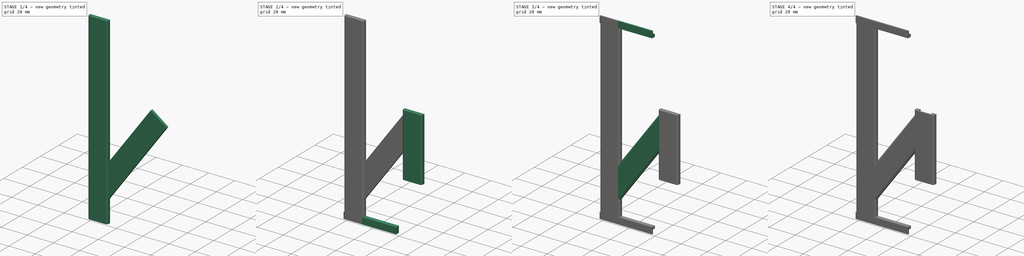
[diagram: build sequence overview — one tinted view per stage of 4, left to right]
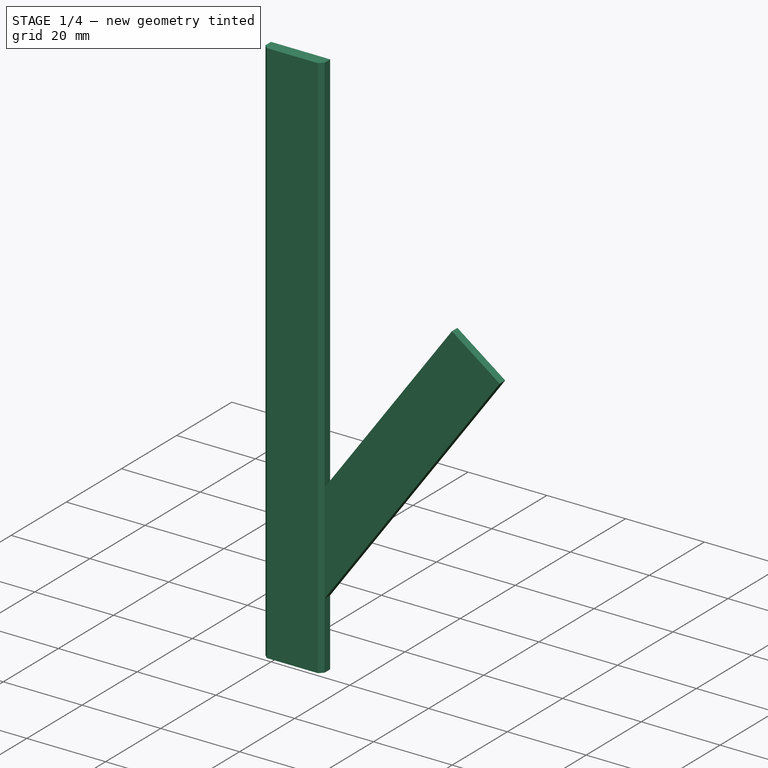
[diagram: stage 1 of 4 — iso view after this stage's code; geometry added in this stage tinted green]
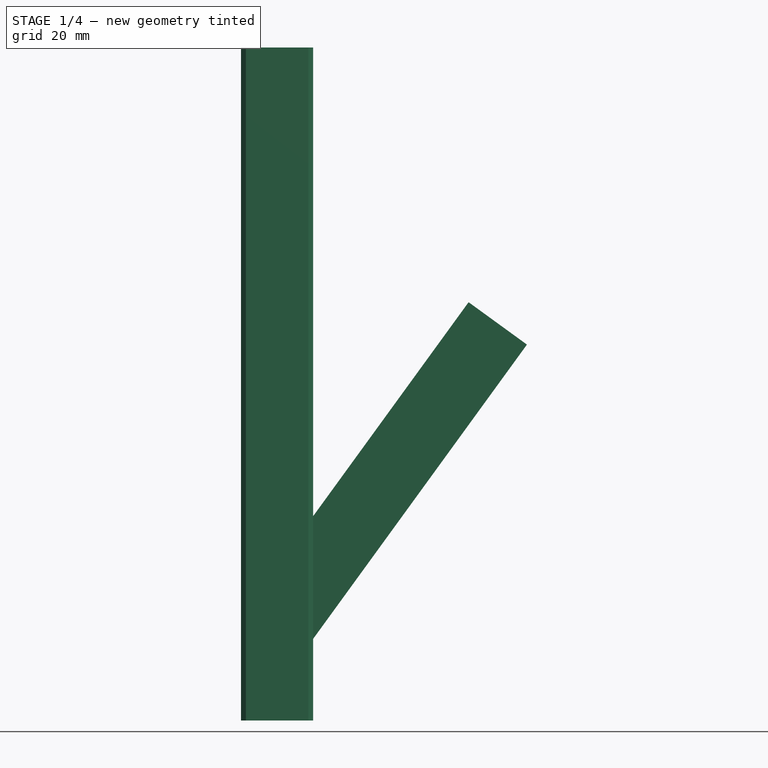
[diagram: stage 1 of 4 — front view after this stage's code; geometry added in this stage tinted green]
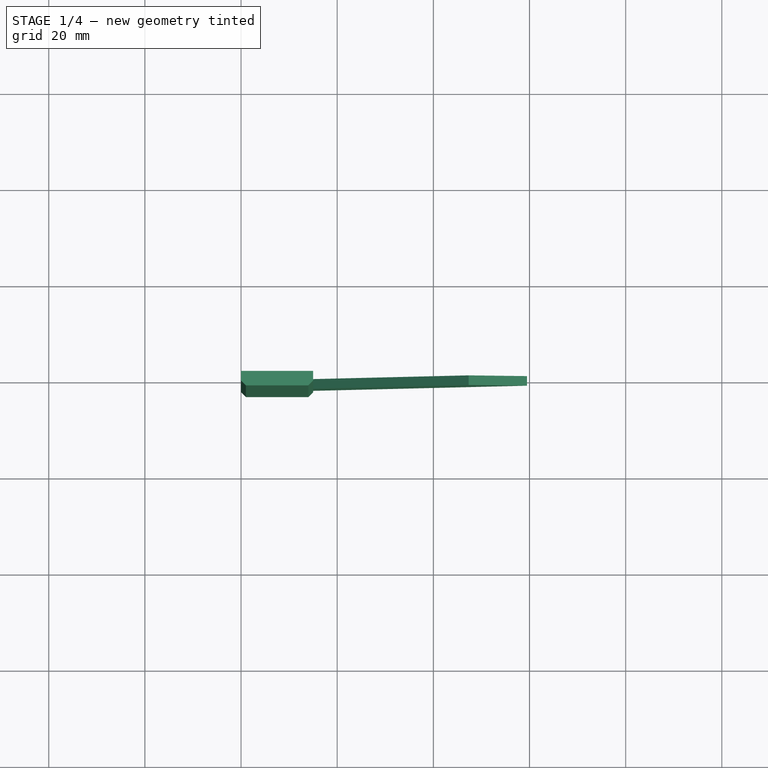
[diagram: stage 1 of 4 — top view after this stage's code; geometry added in this stage tinted green]
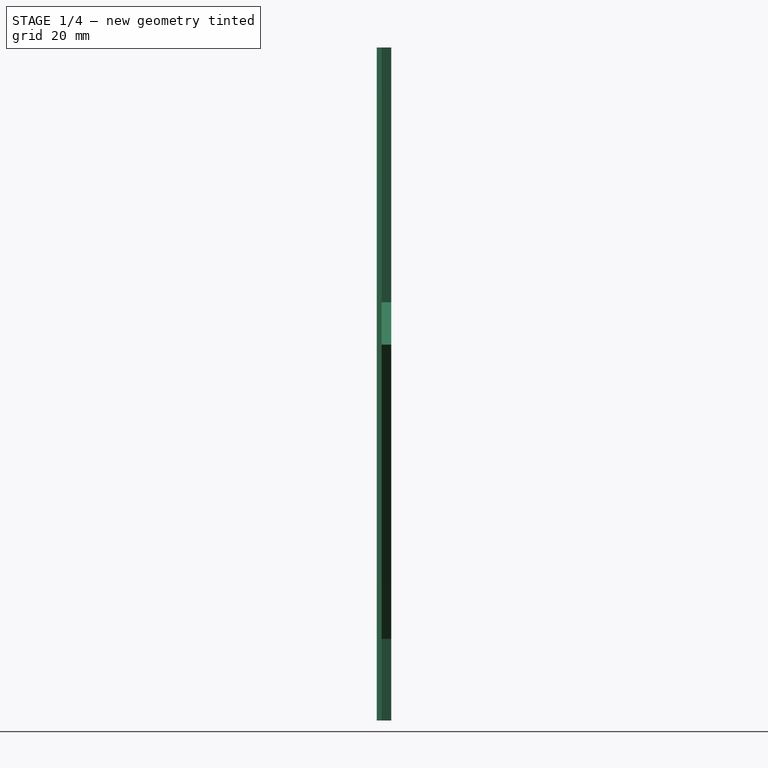
[diagram: stage 1 of 4 — right view after this stage's code; geometry added in this stage tinted green]
FCSTD DOCUMENT  (FreeCAD 0.20R29603 (Git))
Label: neopixelbracket_N
License: All rights reserved
LicenseURL: http://en.wikipedia.org/wiki/All_rights_reserved
objects: Sketcher::SketchObject×13, PartDesign::Pad×8, PartDesign::Pocket×5, PartDesign::Plane×1, PartDesign::Body×1
note: 41 computed .brp shape members not serialized (recipe doc carries the construction recipe); baked Part::Feature solids carry a one-line shape summary decoded from their .brp

FEATURE [Sketcher::SketchObject] Sketch001
  FullyConstrained = true
  MapMode = 5
  Support = -> [XY_Plane]
  sketch-geometry (6):
    g0: LineSegment StartX=1 StartY=-3 StartZ=0 EndX=0 EndY=-2 EndZ=0
    g1: LineSegment StartX=0 StartY=-2 StartZ=0 EndX=0 EndY=0 EndZ=0
    g2: LineSegment StartX=0 StartY=0 StartZ=0 EndX=15 EndY=0 EndZ=0
    g3: LineSegment StartX=15 StartY=0 StartZ=0 EndX=15 EndY=-2 EndZ=0
    g4: LineSegment StartX=15 StartY=-2 StartZ=0 EndX=14 EndY=-3 EndZ=0
    g5: LineSegment StartX=14 StartY=-3 StartZ=0 EndX=1 EndY=-3 EndZ=0
  constraints (17):
    c: Coincident(g0,g1)
    c: Vertical(g1)
    c: Coincident(g1,g2)
    c: Horizontal(g2)
    c: Coincident(g2,g3)
    c: Vertical(g3)
    c: Coincident(g3,g4)
    c: Coincident(g4,g5)
    c: Coincident(g5,g0)
    c: Horizontal(g5)
    c: DistanceY(g0,g1) = 2
    c: DistanceY(g3,g3) = 2
    c: DistanceY(g4,g3) = 1
    c: DistanceX(g4,g3) = 1
    c: DistanceX(g0,g0) = 1
    c: DistanceX(g1,g2) = 15
    c: Coincident(g1,g-1)
FEATURE [PartDesign::Pad] Pad
  Direction = (0,0,1)
  Length = 140
  Length2 = 10
  Profile = -> Sketch001
  ReferenceAxis = -> Sketch001 [N_Axis]
  Type = 0
FEATURE [Sketcher::SketchObject] Sketch
  AttachmentOffset = pos=(0,0,-2) rot=(0,0,1;0rad)
  ExternalGeometry = -> [Pad]
  FullyConstrained = true
  MapMode = 5
  Placement = pos=(0,-2,4e-16) rot=(0,0.707107,0.707107;3.14159rad)
  Support = -> [Pad]
  sketch-geometry (3):
    g0: LineSegment StartX=-15 StartY=42.5195 StartZ=0 EndX=-15 EndY=17 EndZ=0
    g1: LineSegment StartX=-15 StartY=17 StartZ=0 EndX=-27.1353 EndY=33.7027 EndZ=0
    g2: LineSegment StartX=-27.1353 StartY=33.7027 StartZ=0 EndX=-15 EndY=42.5195 EndZ=0
  constraints (9):
    c: Vertical(g0)
    c: Coincident(g0,g1)
    c: Coincident(g1,g2)
    c: Coincident(g2,g0)
    c: Angle(g0,g1) = 0.628319
    c: Distance(g2) = 15
    c: DistanceY(g-4,g0) = 17
    c: DistanceX(g0,g-4) = 0
    c: Angle(g1,g2) = 1.5708
FEATURE [PartDesign::Pad] Pad001
  BaseFeature = -> Pad
  Direction = (0,1,-2e-16)
  Length = 2
  Length2 = 10
  Profile = -> Sketch
  ReferenceAxis = -> Sketch [N_Axis]
  Type = 0
FEATURE [Sketcher::SketchObject] Sketch002
  ExternalGeometry = -> [Pad001]
  FullyConstrained = true
  MapMode = 5
  Placement = pos=(25.4016,7.8e-15,34.9623) rot=(0,1,0;0.628319rad)
  Support = -> [Pad001]
  sketch-geometry (4):
    g0: LineSegment StartX=-12.8571 StartY=-2 StartZ=0 EndX=2.14291 EndY=-2 EndZ=0
    g1: LineSegment StartX=2.14291 StartY=-2 StartZ=0 EndX=2.14291 EndY=0 EndZ=0
    g2: LineSegment StartX=2.14291 StartY=0 StartZ=0 EndX=-12.8571 EndY=0 EndZ=0
    g3: LineSegment StartX=-12.8571 StartY=0 StartZ=0 EndX=-12.8571 EndY=-2 EndZ=0
  constraints (10):
    c: Coincident(g0,g1)
    c: Coincident(g1,g2)
    c: Coincident(g2,g3)
    c: Coincident(g3,g0)
    c: Horizontal(g0)
    c: Horizontal(g2)
    c: Vertical(g1)
    c: Vertical(g3)
    c: Coincident(g1,g-3)
    c: Coincident(g-4,g0)
FEATURE [PartDesign::Pad] Pad002
  BaseFeature = -> Pad001
  Direction = (0.587785,2e-16,0.809017)
  Length = 55
  Length2 = 10
  Profile = -> Sketch002
  ReferenceAxis = -> Sketch002 [N_Axis]
  Type = 0
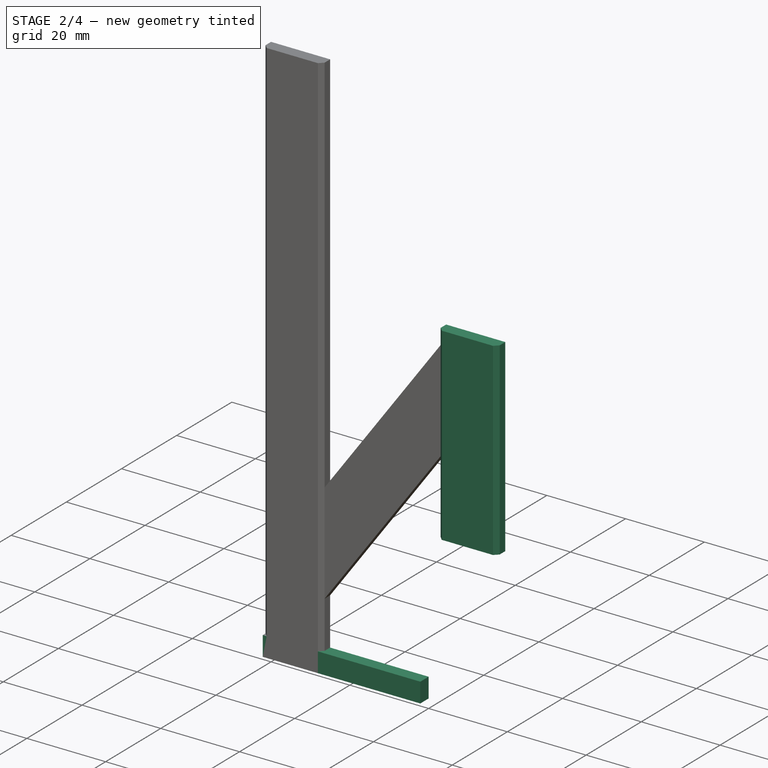
[diagram: stage 2 of 4 — iso view after this stage's code; geometry added in this stage tinted green]
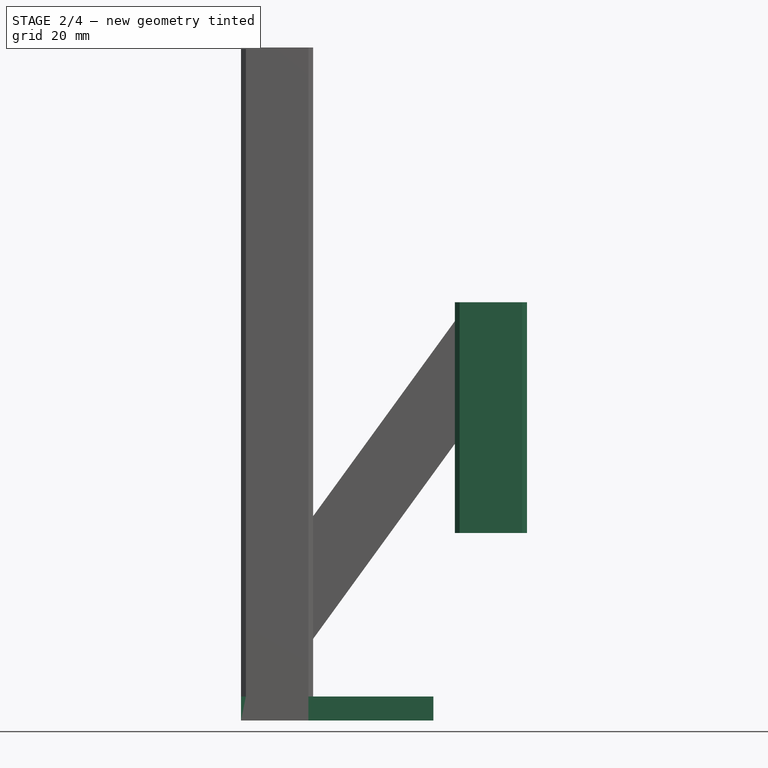
[diagram: stage 2 of 4 — front view after this stage's code; geometry added in this stage tinted green]
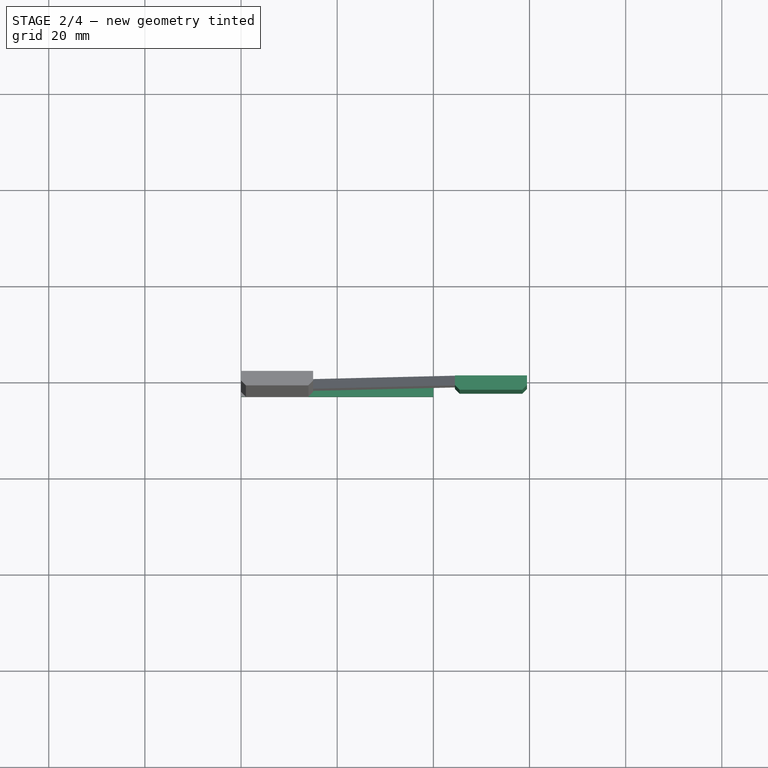
[diagram: stage 2 of 4 — top view after this stage's code; geometry added in this stage tinted green]
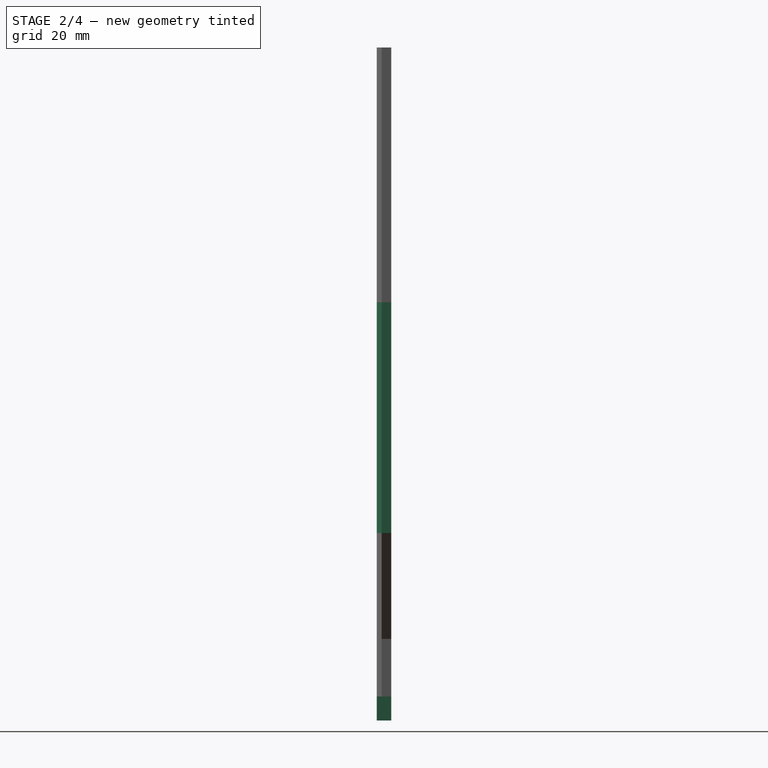
[diagram: stage 2 of 4 — right view after this stage's code; geometry added in this stage tinted green]
FEATURE [Sketcher::SketchObject] Sketch003
  AttachmentOffset = pos=(0,2,-2) rot=(0,0,1;0rad)
  ExternalGeometry = -> [Pad002]
  FullyConstrained = true
  MapMode = 5
  Placement = pos=(0,-2,2) rot=(0,0.707107,0.707107;3.14159rad)
  Support = -> [Pad002]
  sketch-geometry (3):
    g0: LineSegment StartX=-44.4634 StartY=85.0155 StartZ=0 EndX=-59.4634 EndY=85.0155 EndZ=0
    g1: LineSegment StartX=-59.4634 StartY=85.0155 StartZ=0 EndX=-59.4634 EndY=76.1987 EndZ=0
    g2: LineSegment StartX=-59.4634 StartY=76.1987 StartZ=0 EndX=-44.4634 EndY=85.0155 EndZ=0
  constraints (9):
    c: Coincident(g-3,g0)
    c: Horizontal(g0)
    c: Coincident(g0,g1)
    c: Coincident(g1,g-3)
    c: Vertical(g1)
    c: Coincident(g2,g1)
    c: Coincident(g2,g0)
    c: DistanceY(g-3,g0) = 0
    c: DistanceX(g0,g0) = 15
FEATURE [PartDesign::Pad] Pad003
  BaseFeature = -> Pad002
  Direction = (0,1,-2e-16)
  Length = 2
  Length2 = 10
  Profile = -> Sketch003
  ReferenceAxis = -> Sketch003 [N_Axis]
  Type = 0
FEATURE [Sketcher::SketchObject] Sketch004
  AttachmentOffset = pos=(0,0,-48) rot=(0,0,1;0rad)
  ExternalGeometry = -> [Pad003]
  FullyConstrained = true
  MapMode = 5
  Placement = pos=(0,8.6e-15,39.0155) rot=(0,0,1;0rad)
  Support = -> [Pad003]
  sketch-geometry (6):
    g0: LineSegment StartX=59.4634 StartY=0 StartZ=0 EndX=44.4634 EndY=0 EndZ=0
    g1: LineSegment StartX=44.4634 StartY=0 StartZ=0 EndX=44.4634 EndY=-2 EndZ=0
    g2: LineSegment StartX=44.4634 StartY=-2 StartZ=0 EndX=45.4634 EndY=-3 EndZ=0
    g3: LineSegment StartX=45.4634 StartY=-3 StartZ=0 EndX=58.4634 EndY=-3 EndZ=0
    g4: LineSegment StartX=58.4634 StartY=-3 StartZ=0 EndX=59.4634 EndY=-2 EndZ=0
    g5: LineSegment StartX=59.4634 StartY=-2 StartZ=0 EndX=59.4634 EndY=0 EndZ=0
  constraints (14):
    c: Coincident(g-4,g0)
    c: Coincident(g0,g-3)
    c: Coincident(g0,g1)
    c: Coincident(g1,g-3)
    c: Coincident(g1,g2)
    c: Coincident(g2,g3)
    c: Horizontal(g3)
    c: Coincident(g3,g4)
    c: Coincident(g4,g-4)
    c: Coincident(g4,g5)
    c: Coincident(g5,g0)
    c: DistanceX(g3,g4) = 1
    c: DistanceY(g3,g4) = 1
    c: DistanceX(g1,g2) = 1
FEATURE [PartDesign::Pad] Pad004
  BaseFeature = -> Pad003
  Direction = (0,2e-16,1)
  Length = 48
  Length2 = 10
  Profile = -> Sketch004
  ReferenceAxis = -> Sketch004 [N_Axis]
  Type = 0
FEATURE [PartDesign::Plane] DatumPlane
  Length = 68.1833
  MapMode = 7
  Placement = pos=(15,-2,17) rot=(0.689152,-0.689152,-0.223919;2.70102rad)
  ResizeMode = 0
  Support = -> [Pad004]
  Width = 183.5
FEATURE [Sketcher::SketchObject] Sketch005
  AttachmentOffset = pos=(0,0,-73) rot=(0,0,1;0rad)
  FullyConstrained = true
  MapMode = 5
  Placement = pos=(57.9083,-2,76.0582) rot=(0.689152,-0.689152,-0.223919;2.70102rad)
  Support = -> [DatumPlane]
  sketch-geometry (4):
    g0: LineSegment StartX=0 StartY=0 StartZ=0 EndX=0 EndY=15 EndZ=0
    g1: LineSegment StartX=0 StartY=15 StartZ=0 EndX=1 EndY=14 EndZ=0
    g2: LineSegment StartX=1 StartY=14 StartZ=0 EndX=1 EndY=1 EndZ=0
    g3: LineSegment StartX=1 StartY=1 StartZ=0 EndX=0 EndY=0 EndZ=0
  constraints (12):
    c: Vertical(g0)
    c: Coincident(g0,g1)
    c: Coincident(g1,g2)
    c: Vertical(g2)
    c: Coincident(g2,g3)
    c: Coincident(g3,g0)
    c: DistanceX(g0,g1) = 1
    c: DistanceY(g0,g0) = 15
    c: DistanceY(g1,g0) = 1
    c: DistanceY(g0,g2) = 1
    c: DistanceX(g-2,g0) = 0
    c: DistanceY(g-1,g0) = 0
FEATURE [Sketcher::SketchObject] Sketch006
  AttachmentOffset = pos=(0,0,-40) rot=(0,0,1;0rad)
  FullyConstrained = true
  MapMode = 5
  Placement = pos=(40,0,0) rot=(0.57735,-0.57735,-0.57735;2.0944rad)
  Support = -> [Pad004]
  sketch-geometry (4):
    g0: LineSegment StartX=0 StartY=0 StartZ=0 EndX=3 EndY=0 EndZ=0
    g1: LineSegment StartX=3 StartY=0 StartZ=0 EndX=3 EndY=5 EndZ=0
    g2: LineSegment StartX=3 StartY=5 StartZ=0 EndX=0 EndY=5 EndZ=0
    g3: LineSegment StartX=0 StartY=5 StartZ=0 EndX=0 EndY=0 EndZ=0
  constraints (11):
    c: Coincident(g0,g1)
    c: Coincident(g1,g2)
    c: Coincident(g2,g3)
    c: Coincident(g3,g0)
    c: Horizontal(g0)
    c: Horizontal(g2)
    c: Vertical(g1)
    c: Vertical(g3)
    c: Coincident(g0,g-1)
    c: DistanceX(g2,g2) = 3
    c: DistanceY(g3,g3) = 5
FEATURE [PartDesign::Pad] Pad005
  BaseFeature = -> Pad004
  Direction = (-1,0,0)
  Length = 40
  Length2 = 10
  Profile = -> Sketch006
  ReferenceAxis = -> Sketch006 [N_Axis]
  Type = 0
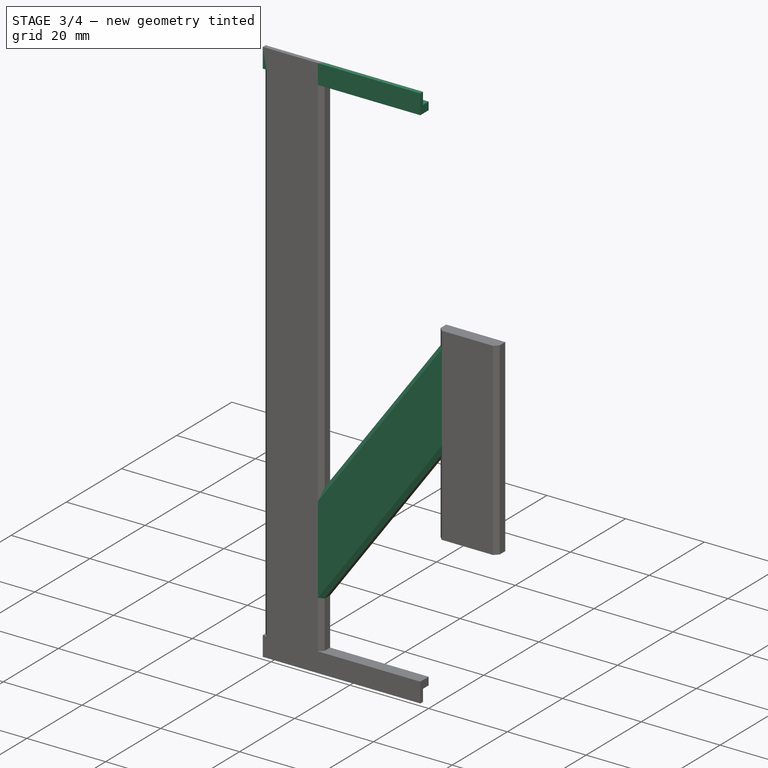
[diagram: stage 3 of 4 — iso view after this stage's code; geometry added in this stage tinted green]
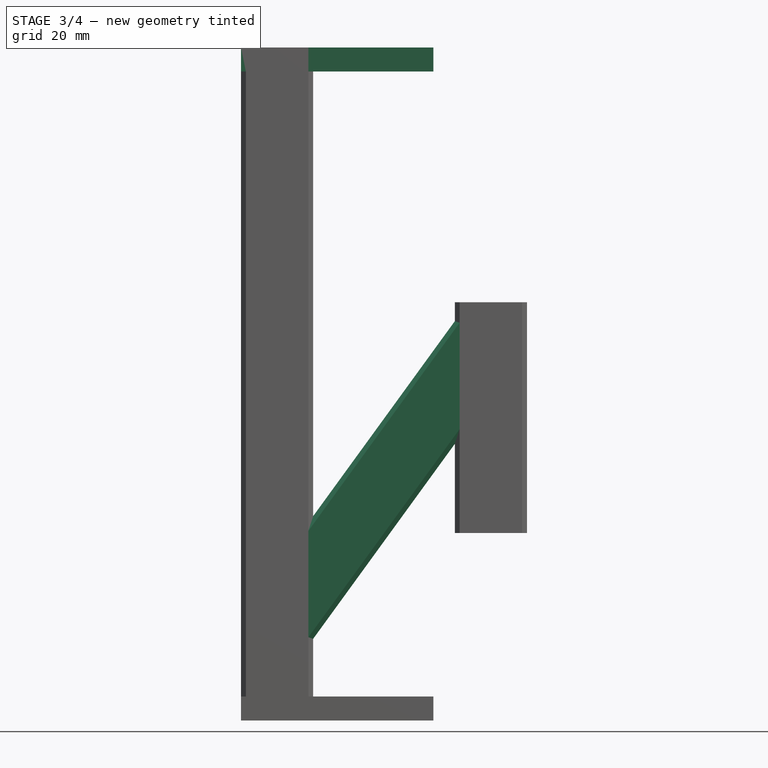
[diagram: stage 3 of 4 — front view after this stage's code; geometry added in this stage tinted green]
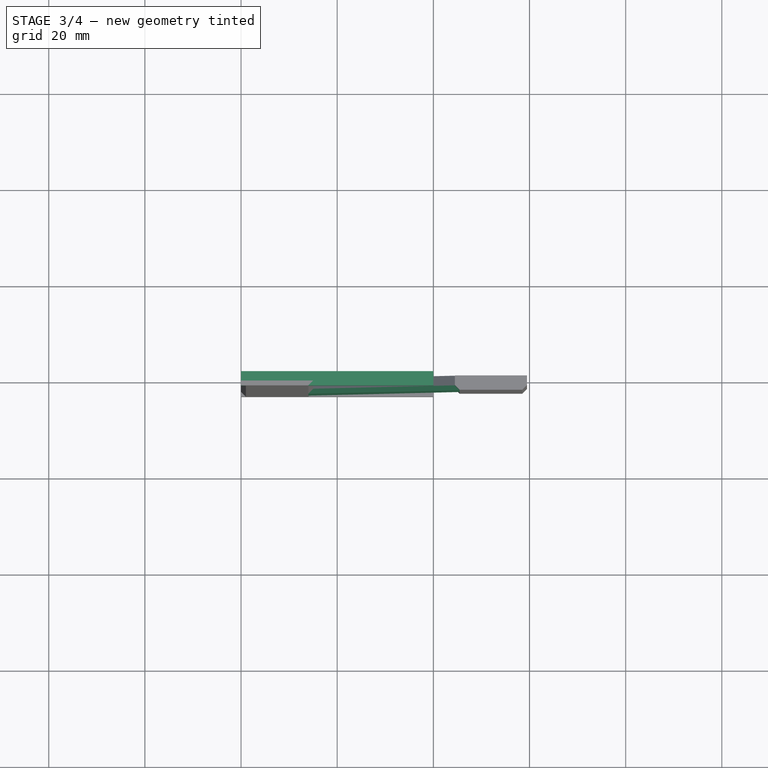
[diagram: stage 3 of 4 — top view after this stage's code; geometry added in this stage tinted green]
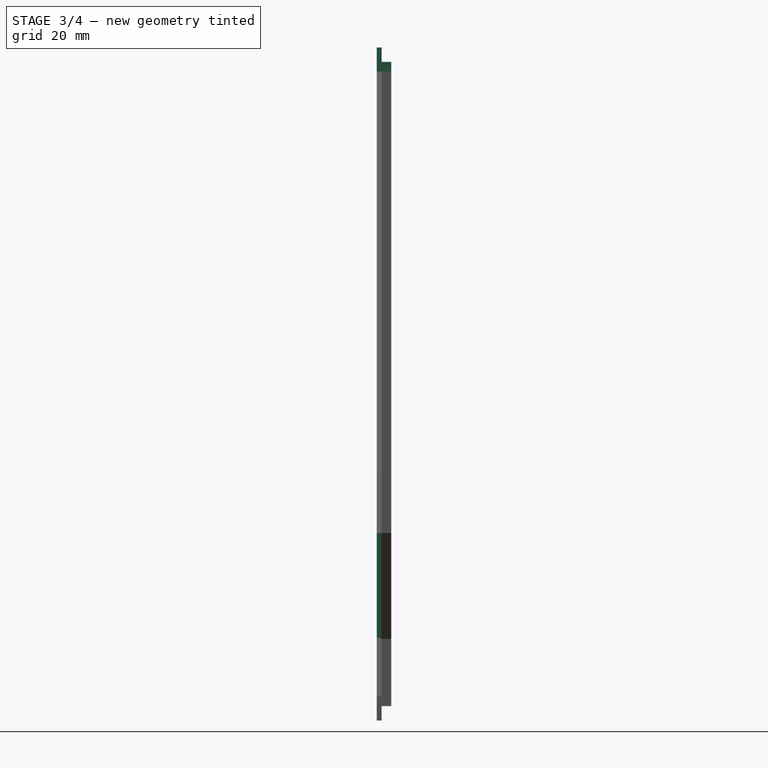
[diagram: stage 3 of 4 — right view after this stage's code; geometry added in this stage tinted green]
FEATURE [Sketcher::SketchObject] Sketch007
  FullyConstrained = true
  MapMode = 5
  Placement = pos=(0,0,0) rot=(0.57735,-0.57735,-0.57735;2.0944rad)
  Support = -> [Pad005]
  sketch-geometry (4):
    g0: LineSegment StartX=0 StartY=0 StartZ=0 EndX=2 EndY=0 EndZ=0
    g1: LineSegment StartX=2 StartY=0 StartZ=0 EndX=2 EndY=3 EndZ=0
    g2: LineSegment StartX=2 StartY=3 StartZ=0 EndX=0 EndY=3 EndZ=0
    g3: LineSegment StartX=0 StartY=3 StartZ=0 EndX=0 EndY=0 EndZ=0
  constraints (11):
    c: Coincident(g0,g1)
    c: Coincident(g1,g2)
    c: Coincident(g2,g3)
    c: Coincident(g3,g0)
    c: Horizontal(g0)
    c: Horizontal(g2)
    c: Vertical(g1)
    c: Vertical(g3)
    c: Coincident(g0,g-1)
    c: DistanceX(g0,g0) = 2
    c: DistanceY(g1,g1) = 3
FEATURE [PartDesign::Pocket] Pocket
  BaseFeature = -> Pad005
  Direction = (1,0,0)
  Length = 40
  Length2 = 5
  Profile = -> Sketch007
  ReferenceAxis = -> Sketch007 [N_Axis]
  Type = 0
FEATURE [Sketcher::SketchObject] Sketch008
  AttachmentOffset = pos=(0,0,-40) rot=(0,0,1;0rad)
  ExternalGeometry = -> [Pocket]
  FullyConstrained = true
  MapMode = 5
  Placement = pos=(40,0,0) rot=(0.57735,-0.57735,-0.57735;2.0944rad)
  Support = -> [Pocket]
  sketch-geometry (4):
    g0: LineSegment StartX=0 StartY=140 StartZ=0 EndX=3 EndY=140 EndZ=0
    g1: LineSegment StartX=3 StartY=140 StartZ=0 EndX=3 EndY=135 EndZ=0
    g2: LineSegment StartX=3 StartY=135 StartZ=0 EndX=0 EndY=135 EndZ=0
    g3: LineSegment StartX=0 StartY=135 StartZ=0 EndX=0 EndY=140 EndZ=0
  constraints (11):
    c: Coincident(g0,g1)
    c: Coincident(g1,g2)
    c: Coincident(g2,g3)
    c: Coincident(g3,g0)
    c: Horizontal(g0)
    c: Horizontal(g2)
    c: Vertical(g1)
    c: Vertical(g3)
    c: Coincident(g0,g-3)
    c: DistanceX(g0,g0) = 3
    c: DistanceY(g3,g3) = 5
FEATURE [PartDesign::Pad] Pad006
  BaseFeature = -> Pocket
  Direction = (-1,0,0)
  Length = 40
  Length2 = 10
  Profile = -> Sketch008
  ReferenceAxis = -> Sketch008 [N_Axis]
  Type = 0
FEATURE [Sketcher::SketchObject] Sketch009
  ExternalGeometry = -> [Pad006]
  FullyConstrained = true
  MapMode = 5
  Placement = pos=(0,0,0) rot=(0.57735,-0.57735,-0.57735;2.0944rad)
  Support = -> [Pad006]
  sketch-geometry (4):
    g0: LineSegment StartX=0 StartY=140 StartZ=0 EndX=2 EndY=140 EndZ=0
    g1: LineSegment StartX=2 StartY=140 StartZ=0 EndX=2 EndY=137 EndZ=0
    g2: LineSegment StartX=2 StartY=137 StartZ=0 EndX=0 EndY=137 EndZ=0
    g3: LineSegment StartX=0 StartY=137 StartZ=0 EndX=0 EndY=140 EndZ=0
  constraints (11):
    c: Coincident(g0,g1)
    c: Coincident(g1,g2)
    c: Coincident(g2,g3)
    c: Coincident(g3,g0)
    c: Horizontal(g0)
    c: Horizontal(g2)
    c: Vertical(g1)
    c: Vertical(g3)
    c: Coincident(g0,g-3)
    c: DistanceX(g0,g0) = 2
    c: DistanceY(g3,g3) = 3
FEATURE [PartDesign::Pocket] Pocket001
  BaseFeature = -> Pad006
  Direction = (1,0,0)
  Length = 40
  Length2 = 5
  Profile = -> Sketch009
  ReferenceAxis = -> Sketch009 [N_Axis]
  Type = 0
FEATURE [PartDesign::Pad] Pad007
  BaseFeature = -> Pocket001
  Direction = (-0.587785,-1e-16,-0.809017)
  Length = 73.5
  Length2 = 10
  Profile = -> Sketch005
  ReferenceAxis = -> Sketch005 [N_Axis]
  Type = 0
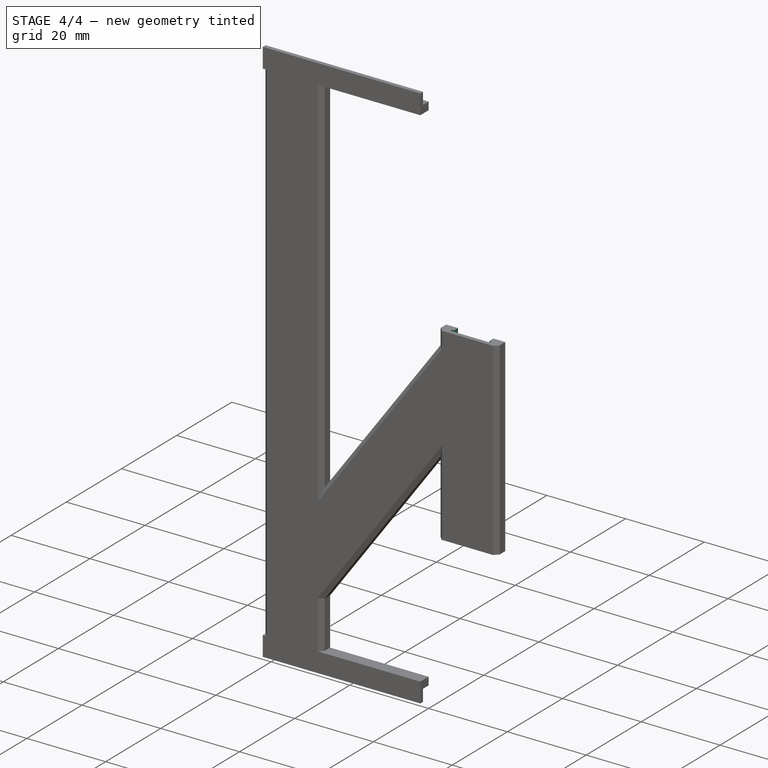
[diagram: stage 4 of 4 — iso view after this stage's code; geometry added in this stage tinted green]
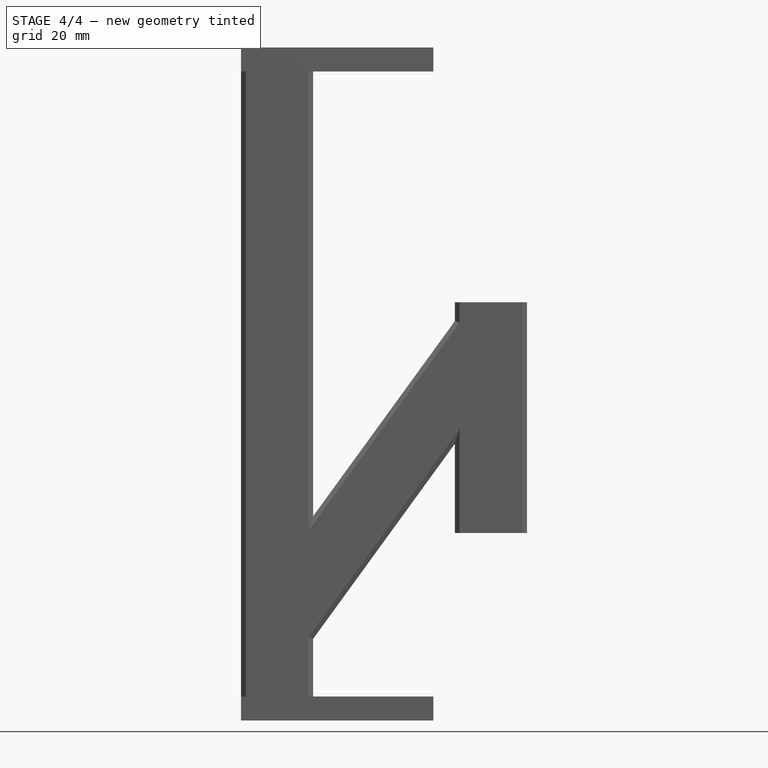
[diagram: stage 4 of 4 — front view after this stage's code; geometry added in this stage tinted green]
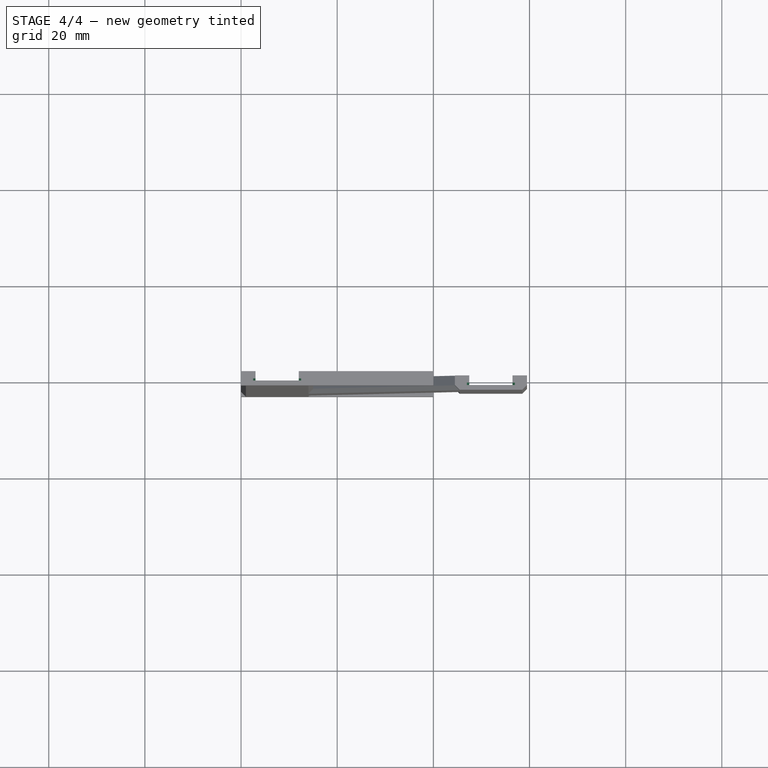
[diagram: stage 4 of 4 — top view after this stage's code; geometry added in this stage tinted green]
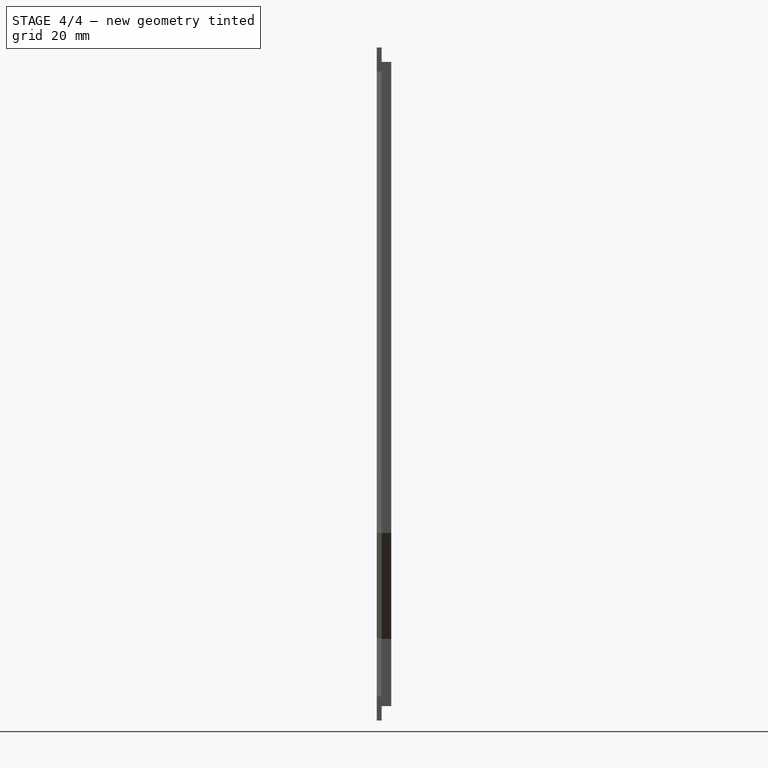
[diagram: stage 4 of 4 — right view after this stage's code; geometry added in this stage tinted green]
FEATURE [Sketcher::SketchObject] Sketch010
  FullyConstrained = true
  MapMode = 5
  Placement = pos=(0,0,3) rot=(1,0,0;3.14159rad)
  Support = -> [Pad007]
  sketch-geometry (8):
    g0: LineSegment StartX=3 StartY=0 StartZ=0 EndX=3 EndY=1.5 EndZ=0
    g1: LineSegment StartX=3 StartY=1.5 StartZ=0 EndX=2.5 EndY=1.5 EndZ=0
    g2: LineSegment StartX=2.5 StartY=1.5 StartZ=0 EndX=2.5 EndY=2 EndZ=0
    g3: LineSegment StartX=2.5 StartY=2 StartZ=0 EndX=12.5 EndY=2 EndZ=0
    g4: LineSegment StartX=12.5 StartY=2 StartZ=0 EndX=12.5 EndY=1.5 EndZ=0
    g5: LineSegment StartX=12.5 StartY=1.5 StartZ=0 EndX=12 EndY=1.5 EndZ=0
    g6: LineSegment StartX=12 StartY=1.5 StartZ=0 EndX=12 EndY=0 EndZ=0
    g7: LineSegment StartX=12 StartY=0 StartZ=0 EndX=3 EndY=0 EndZ=0
  constraints (24):
    c: Vertical(g0)
    c: Coincident(g0,g1)
    c: Horizontal(g1)
    c: Coincident(g1,g2)
    c: Vertical(g2)
    c: Coincident(g2,g3)
    c: Horizontal(g3)
    c: Coincident(g3,g4)
    c: Vertical(g4)
    c: Coincident(g4,g5)
    c: Horizontal(g5)
    c: Coincident(g5,g6)
    c: Vertical(g6)
    c: Coincident(g6,g7)
    c: Coincident(g7,g0)
    c: Horizontal(g7)
    c: DistanceX(g3,g3) = 10
    c: DistanceX(g5,g5) = 0.5
    c: DistanceX(g1,g1) = 0.5
    c: DistanceY(g2,g2) = 0.5
    c: DistanceY(g0,g0) = 1.5
    c: DistanceY(g4,g4) = 0.5
    c: DistanceX(g-1,g0) = 3
    c: DistanceY(g-1,g0) = 0
FEATURE [PartDesign::Pocket] Pocket002
  BaseFeature = -> Pad007
  Direction = (0,0,1)
  Length = 134
  Length2 = 5
  Profile = -> Sketch010
  ReferenceAxis = -> Sketch010 [N_Axis]
  Type = 0
FEATURE [Sketcher::SketchObject] Sketch011
  ExternalGeometry = -> [Pocket002]
  FullyConstrained = true
  MapMode = 5
  Placement = pos=(0,0,39.0155) rot=(1,0,0;3.14159rad)
  Support = -> [Pocket002]
  sketch-geometry (8):
    g0: LineSegment StartX=46.9634 StartY=2 StartZ=0 EndX=56.9634 EndY=2 EndZ=0
    g1: LineSegment StartX=56.9634 StartY=2 StartZ=0 EndX=56.9634 EndY=1.5 EndZ=0
    g2: LineSegment StartX=56.9634 StartY=1.5 StartZ=0 EndX=56.4634 EndY=1.5 EndZ=0
    g3: LineSegment StartX=56.4634 StartY=1.5 StartZ=0 EndX=56.4634 EndY=-9.1e-15 EndZ=0
    g4: LineSegment StartX=56.4634 StartY=-9.1e-15 StartZ=0 EndX=47.4634 EndY=-9.1e-15 EndZ=0
    g5: LineSegment StartX=47.4634 StartY=-9.1e-15 StartZ=0 EndX=47.4634 EndY=1.5 EndZ=0
    g6: LineSegment StartX=47.4634 StartY=1.5 StartZ=0 EndX=46.9634 EndY=1.5 EndZ=0
    g7: LineSegment StartX=46.9634 StartY=1.5 StartZ=0 EndX=46.9634 EndY=2 EndZ=0
  constraints (24):
    c: Horizontal(g0)
    c: Coincident(g0,g1)
    c: Coincident(g1,g2)
    c: Horizontal(g2)
    c: Coincident(g2,g3)
    c: Coincident(g3,g4)
    c: Horizontal(g4)
    c: Coincident(g4,g5)
    c: Coincident(g5,g6)
    c: Coincident(g6,g7)
    c: Coincident(g7,g0)
    c: Vertical(g7)
    c: Horizontal(g6)
    c: Vertical(g3)
    c: Vertical(g1)
    c: Vertical(g5)
    c: DistanceY(g3,g3) = 1.5
    c: DistanceY(g1,g1) = 0.5
    c: DistanceX(g0,g0) = 10
    c: DistanceX(g2,g2) = 0.5
    c: DistanceX(g6,g6) = 0.5
    c: DistanceY(g5,g5) = 1.5
    c: DistanceX(g3,g-3) = 3
    c: DistanceY(g-3,g3) = 0
FEATURE [PartDesign::Pocket] Pocket003
  BaseFeature = -> Pocket002
  Direction = (0,0,1)
  Length = 48
  Length2 = 5
  Profile = -> Sketch011
  ReferenceAxis = -> Sketch011 [N_Axis]
  Type = 0
FEATURE [Sketcher::SketchObject] Sketch012
  FullyConstrained = true
  MapMode = 5
  Placement = pos=(15,-2,17) rot=(0.689152,-0.689152,-0.223919;2.70102rad)
  Support = -> [DatumPlane]
  sketch-geometry (8):
    g0: LineSegment StartX=0 StartY=2.5 StartZ=0 EndX=-0.5 EndY=2.5 EndZ=0
    g1: LineSegment StartX=-0.5 StartY=2.5 StartZ=0 EndX=-0.5 EndY=3 EndZ=0
    g2: LineSegment StartX=-0.5 StartY=3 StartZ=0 EndX=-2 EndY=3 EndZ=0
    g3: LineSegment StartX=-2 StartY=3 StartZ=0 EndX=-2 EndY=12 EndZ=0
    g4: LineSegment StartX=-2 StartY=12 StartZ=0 EndX=-0.5 EndY=12 EndZ=0
    g5: LineSegment StartX=-0.5 StartY=12 StartZ=0 EndX=-0.5 EndY=12.5 EndZ=0
    g6: LineSegment StartX=-0.5 StartY=12.5 StartZ=0 EndX=0 EndY=12.5 EndZ=0
    g7: LineSegment StartX=0 StartY=12.5 StartZ=0 EndX=0 EndY=2.5 EndZ=0
  constraints (24):
    c: Horizontal(g0)
    c: Coincident(g0,g1)
    c: Vertical(g1)
    c: Coincident(g1,g2)
    c: Horizontal(g2)
    c: Coincident(g2,g3)
    c: Vertical(g3)
    c: Coincident(g3,g4)
    c: Horizontal(g4)
    c: Coincident(g4,g5)
    c: Vertical(g5)
    c: Coincident(g5,g6)
    c: Horizontal(g6)
    c: Coincident(g6,g7)
    c: Coincident(g7,g0)
    c: Vertical(g7)
    c: DistanceY(g7,g7) = 10
    c: DistanceY(g1,g1) = 0.5
    c: DistanceY(g5,g5) = 0.5
    c: DistanceX(g6,g6) = 0.5
    c: DistanceX(g4,g4) = 1.5
    c: DistanceX(g0,g0) = 0.5
    c: DistanceY(g-1,g0) = 2.5
    c: DistanceX(g-2,g0) = 0
FEATURE [PartDesign::Pocket] Pocket004
  BaseFeature = -> Pocket003
  Direction = (0.587785,1e-16,0.809017)
  Length = 72
  Length2 = 5
  Profile = -> Sketch012
  ReferenceAxis = -> Sketch012 [N_Axis]
  Type = 0
FEATURE [PartDesign::Body] Body
  Group = -> [Sketch001,Pad,Sketch,Pad001,Sketch002,Pad002,Sketch003,Pad003,Sketch004,Pad004,DatumPlane,Sketch005,Sketch006,Pad005,Sketch007,Pocket,Sketch008,Pad006,Sketch009,Pocket001,Pad007,Sketch010,Pocket002,Sketch011,Pocket003,Sketch012,Pocket004]
  Origin = -> Origin
  Tip = -> Pocket004
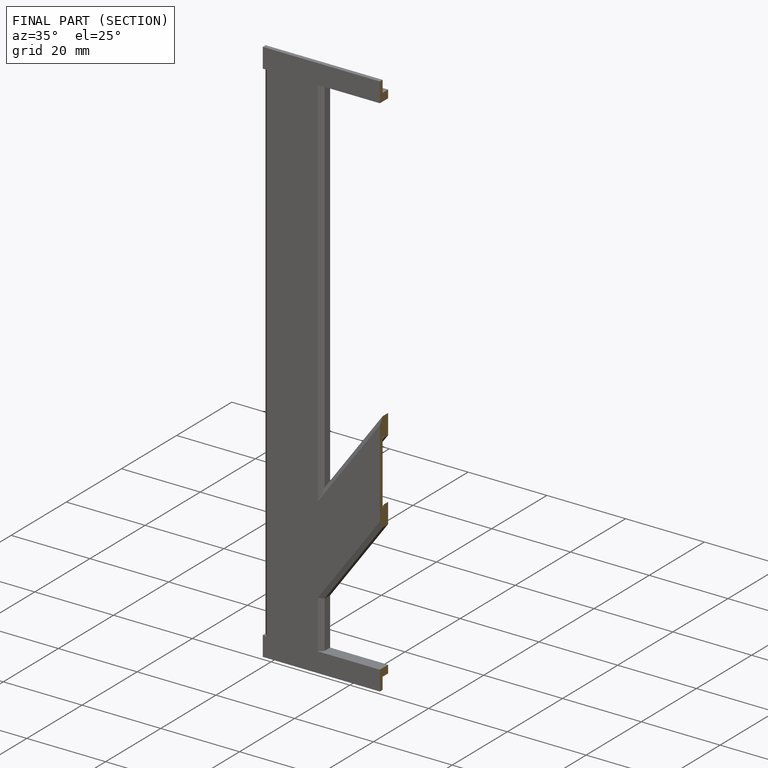
[diagram: finished part — half-section view (interior)]
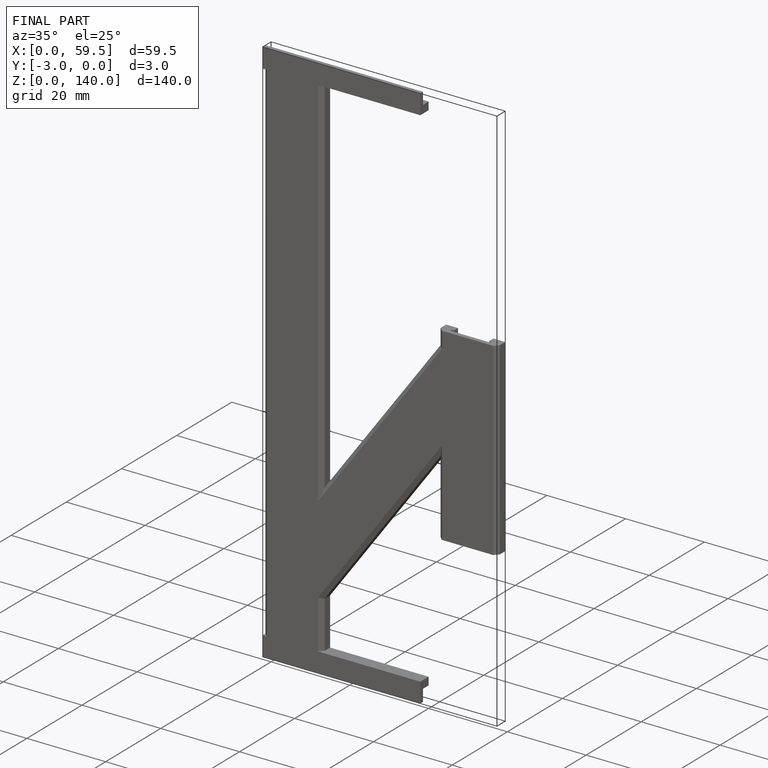
[diagram: finished part — iso view with bounding-box wireframe]
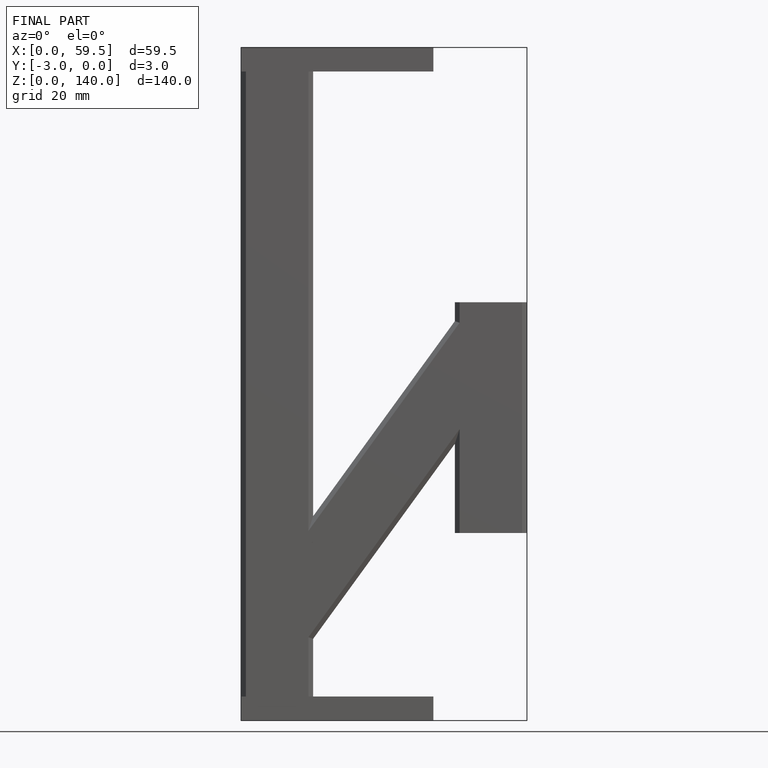
[diagram: finished part — front view with bounding-box wireframe]
